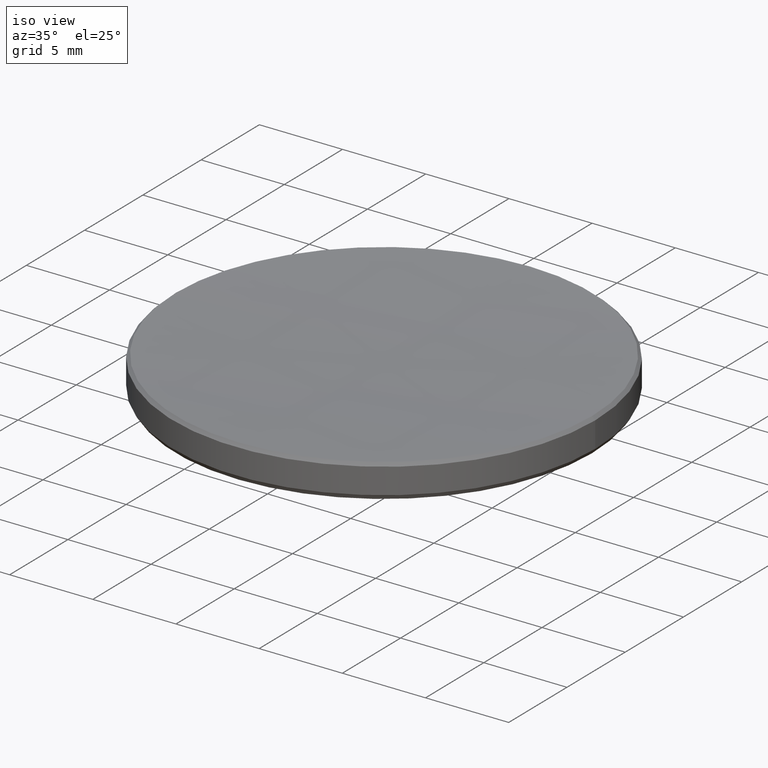
[diagram: clean part render]
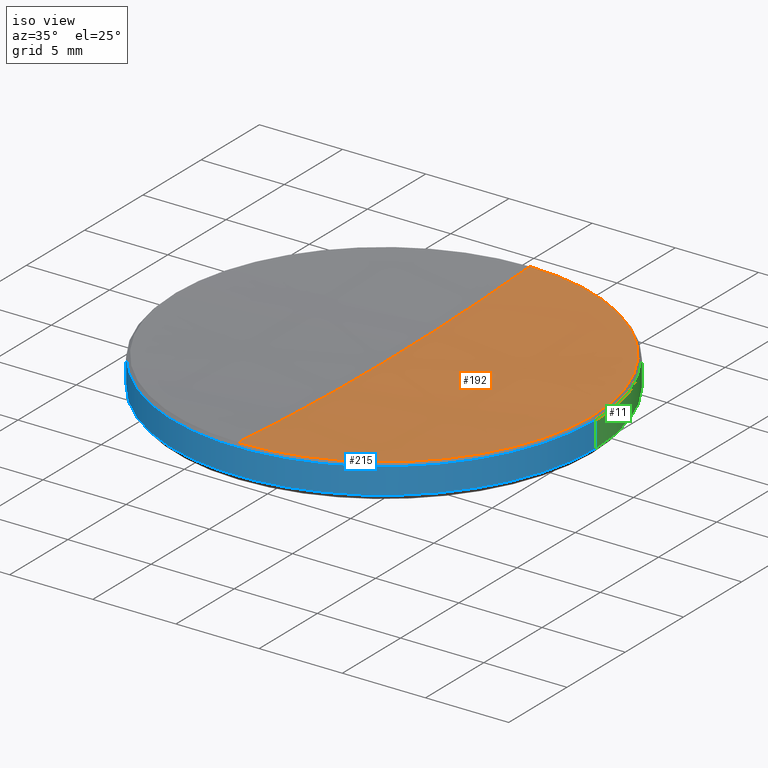
[diagram: same view with three faces highlighted in distinct colors, each labeled with its STEP entity id]
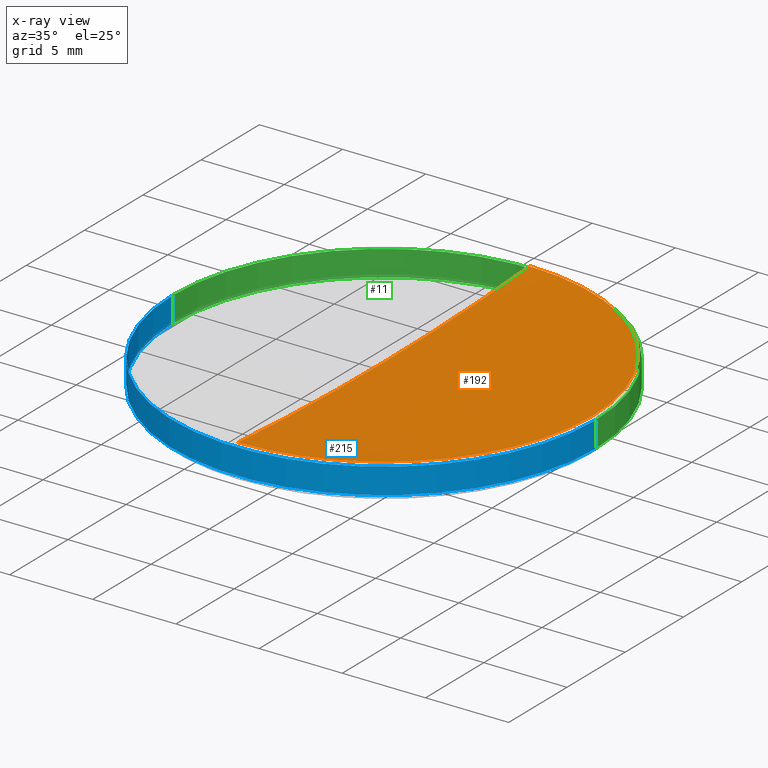
[diagram: x-ray of the same camera — body ghosted, the three highlighted faces saturated]
A machine part, iso view with three faces highlighted in distinct colors.
The next image is the same camera in x-ray (body ghosted, the three faces saturated) — at least one of them is partly hidden behind the body in this view.
Their STEP definitions:

[orange] entity #192 — the highlighted spherical surface has radius 182.19 mm.
#4 = CIRCLE ( 'NONE', #55, 12.51297231911478569 ) ;
#17 = CARTESIAN_POINT ( 'NONE',  ( -1.532397149842306047E-15, -12.51297231911454411, 5.987027680885187664 ) ) ;
#19 = DIRECTION ( 'NONE',  ( 1.000000000000000000, 0.000000000000000000, 0.000000000000000000 ) ) ;
#25 = ORIENTED_EDGE ( 'NONE', *, *, #116, .T. ) ;
#34 = CARTESIAN_POINT ( 'NONE',  ( 0.000000000000000000, 0.000000000000000000, 187.7468186791724918 ) ) ;
#41 = DIRECTION ( 'NONE',  ( -0.000000000000000000, -0.000000000000000000, 1.000000000000000000 ) ) ;
#48 = VERTEX_POINT ( 'NONE', #65 ) ;
#55 = AXIS2_PLACEMENT_3D ( 'NONE', #244, #41, #295 ) ;
#65 = CARTESIAN_POINT ( 'NONE',  ( 0.000000000000000000, 12.51297231911454411, 5.987027680885187664 ) ) ;
#76 = AXIS2_PLACEMENT_3D ( 'NONE', #280, #151, #19 ) ;
#87 = DIRECTION ( 'NONE',  ( 1.000000000000000000, 0.000000000000000000, 0.000000000000000000 ) ) ;
#100 = FACE_OUTER_BOUND ( 'NONE', #133, .T. ) ;
#105 = CIRCLE ( 'NONE', #76, 12.51297231911478569 ) ;
#107 = ORIENTED_EDGE ( 'NONE', *, *, #136, .T. ) ;
#115 = VERTEX_POINT ( 'NONE', #17 ) ;
#116 = EDGE_CURVE ( 'NONE', #256, #115, #155, .T. ) ;
#127 = VERTEX_POINT ( 'NONE', #248 ) ;
#133 = EDGE_LOOP ( 'NONE', ( #326, #25, #107, #223 ) ) ;
#136 = EDGE_CURVE ( 'NONE', #115, #127, #4, .T. ) ;
#151 = DIRECTION ( 'NONE',  ( -0.000000000000000000, -0.000000000000000000, 1.000000000000000000 ) ) ;
#155 = CIRCLE ( 'NONE', #327, 182.1899999999999977 ) ;
#162 = CARTESIAN_POINT ( 'NONE',  ( 0.000000000000000000, 0.000000000000000000, 187.7468186791724918 ) ) ;
#164 = DIRECTION ( 'NONE',  ( 0.000000000000000000, 1.000000000000000000, 0.000000000000000000 ) ) ;
#192 = ADVANCED_FACE ( 'NONE', ( #100 ), #217, .F. ) ;
#208 = AXIS2_PLACEMENT_3D ( 'NONE', #34, #263, #164 ) ;
#217 = SPHERICAL_SURFACE ( 'NONE', #208, 182.1899999999999977 ) ;
#219 = AXIS2_PLACEMENT_3D ( 'NONE', #162, #87, #305 ) ;
#223 = ORIENTED_EDGE ( 'NONE', *, *, #279, .T. ) ;
#244 = CARTESIAN_POINT ( 'NONE',  ( 0.000000000000000000, 0.000000000000000000, 5.987027680885187664 ) ) ;
#248 = CARTESIAN_POINT ( 'NONE',  ( 12.51297231911478569, 1.543849292379736932E-15, 5.987027680885187664 ) ) ;
#256 = VERTEX_POINT ( 'NONE', #316 ) ;
#263 = DIRECTION ( 'NONE',  ( -1.000000000000000000, 0.000000000000000000, 0.000000000000000000 ) ) ;
#273 = DIRECTION ( 'NONE',  ( -1.224646799147352961E-16, -1.000000000000000000, 0.000000000000000000 ) ) ;
#275 = DIRECTION ( 'NONE',  ( -1.000000000000000000, 1.224646799147353207E-16, 0.000000000000000000 ) ) ;
#279 = EDGE_CURVE ( 'NONE', #127, #48, #105, .T. ) ;
#280 = CARTESIAN_POINT ( 'NONE',  ( 0.000000000000000000, 0.000000000000000000, 5.987027680885187664 ) ) ;
#295 = DIRECTION ( 'NONE',  ( 1.000000000000000000, 0.000000000000000000, 0.000000000000000000 ) ) ;
#301 = EDGE_CURVE ( 'NONE', #256, #48, #328, .T. ) ;
#305 = DIRECTION ( 'NONE',  ( 0.000000000000000000, 0.000000000000000000, -1.000000000000000000 ) ) ;
#316 = CARTESIAN_POINT ( 'NONE',  ( 0.000000000000000000, 1.115592001683281265E-14, 5.556818679172486952 ) ) ;
#319 = CARTESIAN_POINT ( 'NONE',  ( 0.000000000000000000, 0.000000000000000000, 187.7468186791724918 ) ) ;
#326 = ORIENTED_EDGE ( 'NONE', *, *, #301, .F. ) ;
#327 = AXIS2_PLACEMENT_3D ( 'NONE', #319, #275, #273 ) ;
#328 = CIRCLE ( 'NONE', #219, 182.1899999999999977 ) ;

[blue] entity #215 — the highlighted cylindrical surface (partial cylindrical patch) has radius 12.7 mm, axis along (-0, -0, -1).
#23 = VECTOR ( 'NONE', #148, 1000.000000000000000 ) ;
#30 = CIRCLE ( 'NONE', #286, 12.69999999999999929 ) ;
#56 = CARTESIAN_POINT ( 'NONE',  ( 0.000000000000000000, 0.000000000000000000, 4.253353967830220128 ) ) ;
#64 = DIRECTION ( 'NONE',  ( 0.000000000000000000, 0.000000000000000000, -1.000000000000000000 ) ) ;
#77 = CARTESIAN_POINT ( 'NONE',  ( -12.69999999999999929, 0.000000000000000000, 5.800000000000027356 ) ) ;
#83 = EDGE_LOOP ( 'NONE', ( #97, #258, #122, #150 ) ) ;
#84 = FACE_OUTER_BOUND ( 'NONE', #83, .T. ) ;
#97 = ORIENTED_EDGE ( 'NONE', *, *, #131, .F. ) ;
#109 = DIRECTION ( 'NONE',  ( -0.000000000000000000, -0.000000000000000000, -1.000000000000000000 ) ) ;
#122 = ORIENTED_EDGE ( 'NONE', *, *, #330, .T. ) ;
#124 = DIRECTION ( 'NONE',  ( 1.000000000000000000, 0.000000000000000000, 0.000000000000000000 ) ) ;
#131 = EDGE_CURVE ( 'NONE', #249, #274, #168, .T. ) ;
#148 = DIRECTION ( 'NONE',  ( -0.000000000000000000, -0.000000000000000000, -1.000000000000000000 ) ) ;
#150 = ORIENTED_EDGE ( 'NONE', *, *, #225, .T. ) ;
#154 = EDGE_CURVE ( 'NONE', #249, #293, #189, .T. ) ;
#159 = CARTESIAN_POINT ( 'NONE',  ( 0.000000000000000000, 0.000000000000000000, 10.00000000000000000 ) ) ;
#161 = AXIS2_PLACEMENT_3D ( 'NONE', #159, #109, #287 ) ;
#166 = DIRECTION ( 'NONE',  ( -0.000000000000000000, -0.000000000000000000, 1.000000000000000000 ) ) ;
#168 = LINE ( 'NONE', #298, #23 ) ;
#178 = CARTESIAN_POINT ( 'NONE',  ( -12.69999999999999929, 0.000000000000000000, 10.00000000000000000 ) ) ;
#181 = CARTESIAN_POINT ( 'NONE',  ( 12.69999999999999929, 1.555301434917138433E-15, 4.253353967830220128 ) ) ;
#189 = CIRCLE ( 'NONE', #242, 12.69999999999999929 ) ;
#191 = CARTESIAN_POINT ( 'NONE',  ( -12.69999999999999929, 0.000000000000000000, 4.253353967830220128 ) ) ;
#200 = VERTEX_POINT ( 'NONE', #191 ) ;
#204 = CARTESIAN_POINT ( 'NONE',  ( 0.000000000000000000, 0.000000000000000000, 5.800000000000027356 ) ) ;
#206 = LINE ( 'NONE', #178, #232 ) ;
#215 = ADVANCED_FACE ( 'NONE', ( #84 ), #236, .T. ) ;
#218 = DIRECTION ( 'NONE',  ( -1.000000000000000000, 0.000000000000000000, 0.000000000000000000 ) ) ;
#225 = EDGE_CURVE ( 'NONE', #200, #274, #30, .T. ) ;
#232 = VECTOR ( 'NONE', #302, 1000.000000000000000 ) ;
#236 = CYLINDRICAL_SURFACE ( 'NONE', #161, 12.69999999999999929 ) ;
#240 = CARTESIAN_POINT ( 'NONE',  ( 12.69999999999999929, 1.555301434917138433E-15, 5.800000000000027356 ) ) ;
#242 = AXIS2_PLACEMENT_3D ( 'NONE', #204, #64, #124 ) ;
#249 = VERTEX_POINT ( 'NONE', #240 ) ;
#258 = ORIENTED_EDGE ( 'NONE', *, *, #154, .T. ) ;
#274 = VERTEX_POINT ( 'NONE', #181 ) ;
#286 = AXIS2_PLACEMENT_3D ( 'NONE', #56, #166, #218 ) ;
#287 = DIRECTION ( 'NONE',  ( -1.000000000000000000, 0.000000000000000000, 0.000000000000000000 ) ) ;
#293 = VERTEX_POINT ( 'NONE', #77 ) ;
#298 = CARTESIAN_POINT ( 'NONE',  ( 12.69999999999999929, 1.555301434917138433E-15, 10.00000000000000000 ) ) ;
#302 = DIRECTION ( 'NONE',  ( -0.000000000000000000, -0.000000000000000000, -1.000000000000000000 ) ) ;
#330 = EDGE_CURVE ( 'NONE', #293, #200, #206, .T. ) ;

[green] entity #11 — the highlighted cylindrical surface (partial cylindrical patch) has radius 12.7 mm, axis along (-0, -0, -1).
#8 = AXIS2_PLACEMENT_3D ( 'NONE', #268, #67, #250 ) ;
#9 = DIRECTION ( 'NONE',  ( -0.000000000000000000, -0.000000000000000000, 1.000000000000000000 ) ) ;
#11 = ADVANCED_FACE ( 'NONE', ( #73 ), #13, .T. ) ;
#13 = CYLINDRICAL_SURFACE ( 'NONE', #137, 12.69999999999999929 ) ;
#23 = VECTOR ( 'NONE', #148, 1000.000000000000000 ) ;
#44 = EDGE_LOOP ( 'NONE', ( #270, #332, #259, #180 ) ) ;
#67 = DIRECTION ( 'NONE',  ( 0.000000000000000000, 0.000000000000000000, -1.000000000000000000 ) ) ;
#73 = FACE_OUTER_BOUND ( 'NONE', #44, .T. ) ;
#77 = CARTESIAN_POINT ( 'NONE',  ( -12.69999999999999929, 0.000000000000000000, 5.800000000000027356 ) ) ;
#80 = EDGE_CURVE ( 'NONE', #274, #200, #224, .T. ) ;
#131 = EDGE_CURVE ( 'NONE', #249, #274, #168, .T. ) ;
#137 = AXIS2_PLACEMENT_3D ( 'NONE', #203, #299, #205 ) ;
#148 = DIRECTION ( 'NONE',  ( -0.000000000000000000, -0.000000000000000000, -1.000000000000000000 ) ) ;
#160 = EDGE_CURVE ( 'NONE', #293, #249, #269, .T. ) ;
#168 = LINE ( 'NONE', #298, #23 ) ;
#178 = CARTESIAN_POINT ( 'NONE',  ( -12.69999999999999929, 0.000000000000000000, 10.00000000000000000 ) ) ;
#180 = ORIENTED_EDGE ( 'NONE', *, *, #330, .F. ) ;
#181 = CARTESIAN_POINT ( 'NONE',  ( 12.69999999999999929, 1.555301434917138433E-15, 4.253353967830220128 ) ) ;
#191 = CARTESIAN_POINT ( 'NONE',  ( -12.69999999999999929, 0.000000000000000000, 4.253353967830220128 ) ) ;
#200 = VERTEX_POINT ( 'NONE', #191 ) ;
#203 = CARTESIAN_POINT ( 'NONE',  ( 0.000000000000000000, 0.000000000000000000, 10.00000000000000000 ) ) ;
#205 = DIRECTION ( 'NONE',  ( -1.000000000000000000, 0.000000000000000000, 0.000000000000000000 ) ) ;
#206 = LINE ( 'NONE', #178, #232 ) ;
#224 = CIRCLE ( 'NONE', #264, 12.69999999999999929 ) ;
#232 = VECTOR ( 'NONE', #302, 1000.000000000000000 ) ;
#240 = CARTESIAN_POINT ( 'NONE',  ( 12.69999999999999929, 1.555301434917138433E-15, 5.800000000000027356 ) ) ;
#249 = VERTEX_POINT ( 'NONE', #240 ) ;
#250 = DIRECTION ( 'NONE',  ( 1.000000000000000000, 0.000000000000000000, 0.000000000000000000 ) ) ;
#259 = ORIENTED_EDGE ( 'NONE', *, *, #80, .T. ) ;
#264 = AXIS2_PLACEMENT_3D ( 'NONE', #323, #9, #321 ) ;
#268 = CARTESIAN_POINT ( 'NONE',  ( 0.000000000000000000, 0.000000000000000000, 5.800000000000027356 ) ) ;
#269 = CIRCLE ( 'NONE', #8, 12.69999999999999929 ) ;
#270 = ORIENTED_EDGE ( 'NONE', *, *, #160, .T. ) ;
#274 = VERTEX_POINT ( 'NONE', #181 ) ;
#293 = VERTEX_POINT ( 'NONE', #77 ) ;
#298 = CARTESIAN_POINT ( 'NONE',  ( 12.69999999999999929, 1.555301434917138433E-15, 10.00000000000000000 ) ) ;
#299 = DIRECTION ( 'NONE',  ( -0.000000000000000000, -0.000000000000000000, -1.000000000000000000 ) ) ;
#302 = DIRECTION ( 'NONE',  ( -0.000000000000000000, -0.000000000000000000, -1.000000000000000000 ) ) ;
#321 = DIRECTION ( 'NONE',  ( -1.000000000000000000, 0.000000000000000000, 0.000000000000000000 ) ) ;
#323 = CARTESIAN_POINT ( 'NONE',  ( 0.000000000000000000, 0.000000000000000000, 4.253353967830220128 ) ) ;
#330 = EDGE_CURVE ( 'NONE', #293, #200, #206, .T. ) ;
#332 = ORIENTED_EDGE ( 'NONE', *, *, #131, .T. ) ;